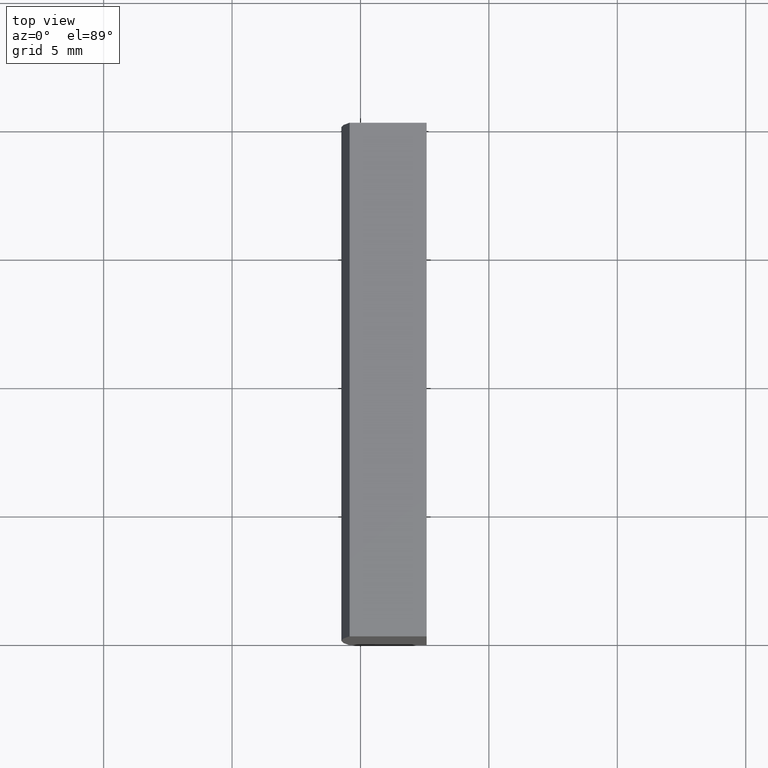
[diagram: clean part render]
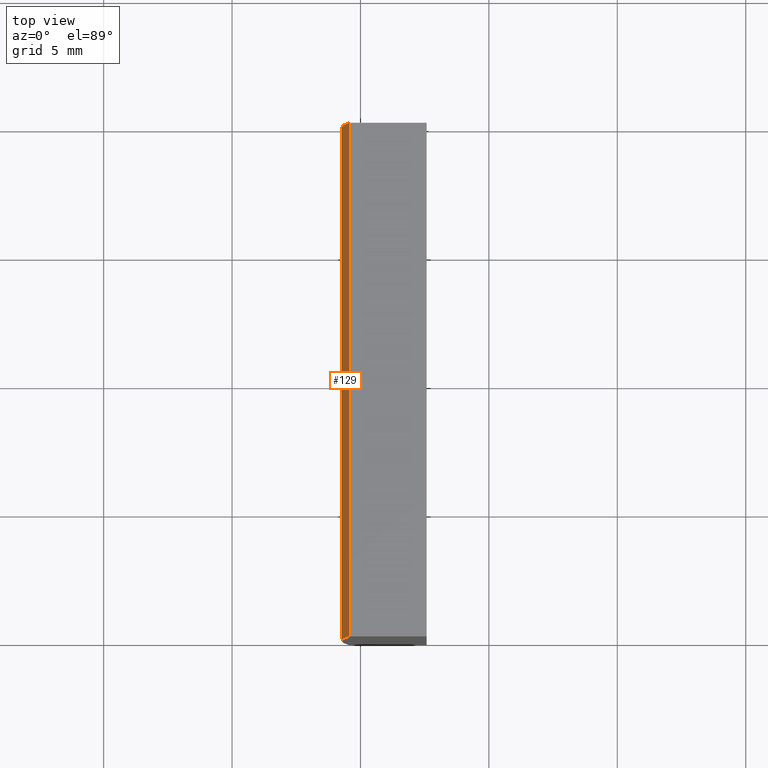
[diagram: same view with one face highlighted and labeled with its STEP entity id]
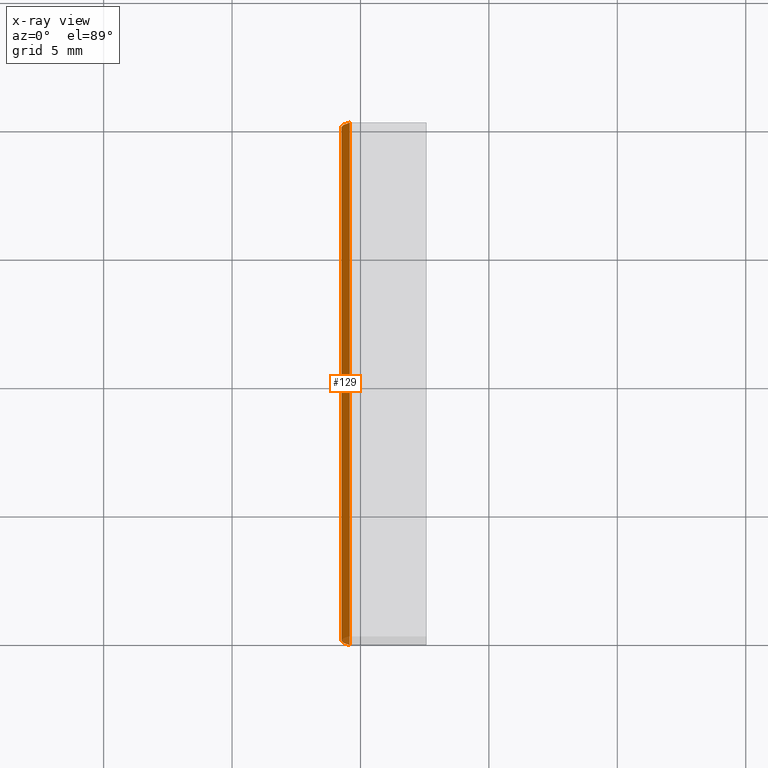
[diagram: x-ray of the same camera — body ghosted, the highlighted face saturated]
A machine part, top view. The second image highlights one B-rep face of the part: STEP entity #129.
The next image is the same camera in x-ray: the body ghosted, the highlighted face saturated — about 1% of this face is hidden behind the body in this view.
In plain terms, the highlighted cylindrical surface (partial cylindrical patch) has radius 155.1 mm, axis along (-0, -1, -0).
Its self-contained STEP definition (entity closure, byte-faithful):
#3 = EDGE_CURVE ( 'NONE', #150, #80, #131, .T. ) ;
#15 = EDGE_CURVE ( 'NONE', #80, #191, #18, .T. ) ;
#17 = DIRECTION ( 'NONE',  ( 0.0000000000000000000, 0.0000000000000000000, 1.000000000000000000 ) ) ;
#18 = CIRCLE ( 'NONE', #51, 155.0999999999999900 ) ;
#21 = CIRCLE ( 'NONE', #173, 155.0999999999999900 ) ;
#22 = AXIS2_PLACEMENT_3D ( 'NONE', #31, #174, #74 ) ;
#23 = VECTOR ( 'NONE', #84, 1000.000000000000000 ) ;
#26 = CYLINDRICAL_SURFACE ( 'NONE', #22, 155.0999999999999900 ) ;
#31 = CARTESIAN_POINT ( 'NONE',  ( 4.355204334851265500, 20.00000000000000000, 4.286263797015675000E-017 ) ) ;
#33 = VECTOR ( 'NONE', #159, 1000.000000000000000 ) ;
#39 = EDGE_LOOP ( 'NONE', ( #114, #160, #130, #101 ) ) ;
#51 = AXIS2_PLACEMENT_3D ( 'NONE', #82, #81, #115 ) ;
#57 = DIRECTION ( 'NONE',  ( 0.0000000000000000000, 1.000000000000000000, 0.0000000000000000000 ) ) ;
#71 = CARTESIAN_POINT ( 'NONE',  ( -150.4220872811994200, 0.0000000000000000000, -10.00000000000000000 ) ) ;
#74 = DIRECTION ( 'NONE',  ( 0.0000000000000000000, 0.0000000000000000000, -1.000000000000000000 ) ) ;
#80 = VERTEX_POINT ( 'NONE', #71 ) ;
#81 = DIRECTION ( 'NONE',  ( 0.0000000000000000000, 1.000000000000000000, 0.0000000000000000000 ) ) ;
#82 = CARTESIAN_POINT ( 'NONE',  ( 4.355204334851265500, 0.0000000000000000000, 4.286263797015675000E-017 ) ) ;
#84 = DIRECTION ( 'NONE',  ( -0.0000000000000000000, -1.000000000000000000, -0.0000000000000000000 ) ) ;
#98 = LINE ( 'NONE', #179, #33 ) ;
#101 = ORIENTED_EDGE ( 'NONE', *, *, #3, .T. ) ;
#107 = EDGE_CURVE ( 'NONE', #150, #192, #21, .T. ) ;
#114 = ORIENTED_EDGE ( 'NONE', *, *, #15, .T. ) ;
#115 = DIRECTION ( 'NONE',  ( 0.0000000000000000000, 0.0000000000000000000, 1.000000000000000000 ) ) ;
#117 = CARTESIAN_POINT ( 'NONE',  ( -150.4220872811994200, 20.00000000000000000, 10.00000000000000000 ) ) ;
#123 = CARTESIAN_POINT ( 'NONE',  ( -150.4220872811994200, 20.00000000000000000, -10.00000000000000000 ) ) ;
#127 = CARTESIAN_POINT ( 'NONE',  ( 4.355204334851265500, 20.00000000000000000, 4.286263797015675000E-017 ) ) ;
#129 = ADVANCED_FACE ( 'NONE', ( #148 ), #26, .T. ) ;
#130 = ORIENTED_EDGE ( 'NONE', *, *, #107, .F. ) ;
#131 = LINE ( 'NONE', #133, #23 ) ;
#133 = CARTESIAN_POINT ( 'NONE',  ( -150.4220872811994200, 20.00000000000000000, -10.00000000000000000 ) ) ;
#148 = FACE_OUTER_BOUND ( 'NONE', #39, .T. ) ;
#150 = VERTEX_POINT ( 'NONE', #123 ) ;
#153 = CARTESIAN_POINT ( 'NONE',  ( -150.4220872811994200, 0.0000000000000000000, 10.00000000000000000 ) ) ;
#159 = DIRECTION ( 'NONE',  ( -0.0000000000000000000, -1.000000000000000000, -0.0000000000000000000 ) ) ;
#160 = ORIENTED_EDGE ( 'NONE', *, *, #167, .F. ) ;
#167 = EDGE_CURVE ( 'NONE', #192, #191, #98, .T. ) ;
#173 = AXIS2_PLACEMENT_3D ( 'NONE', #127, #57, #17 ) ;
#174 = DIRECTION ( 'NONE',  ( -0.0000000000000000000, -1.000000000000000000, -0.0000000000000000000 ) ) ;
#179 = CARTESIAN_POINT ( 'NONE',  ( -150.4220872811994200, 20.00000000000000000, 10.00000000000000000 ) ) ;
#191 = VERTEX_POINT ( 'NONE', #153 ) ;
#192 = VERTEX_POINT ( 'NONE', #117 ) ;